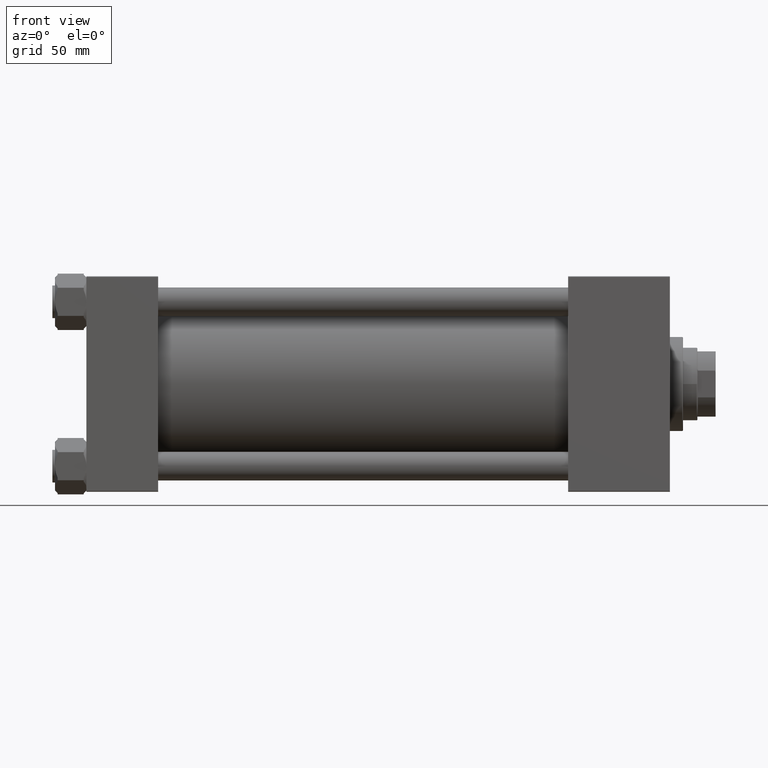
[diagram: clean part render]
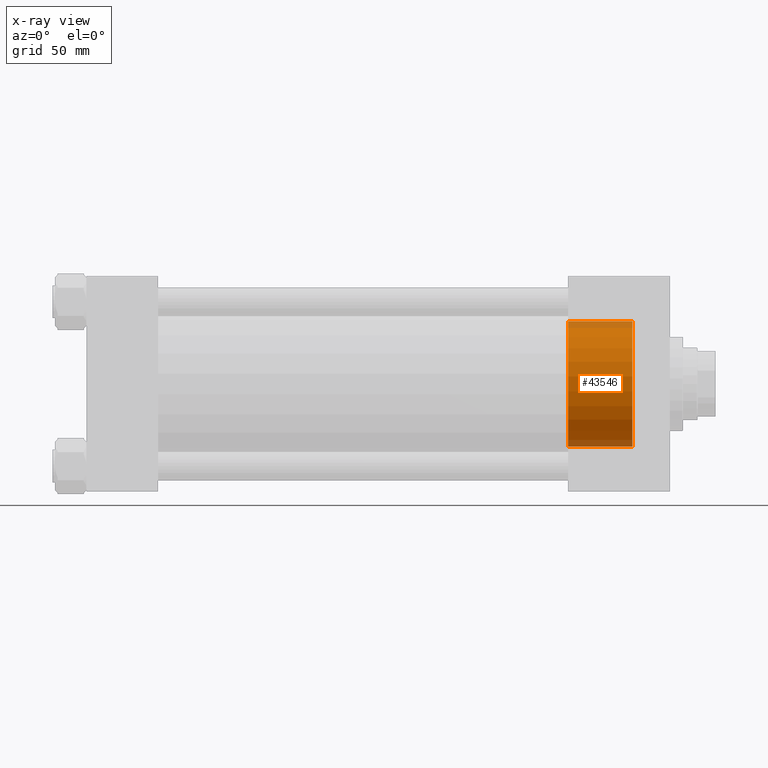
[diagram: x-ray — body ghosted, one internal face saturated and labeled with its STEP entity id]
A machine part, front view, then the same camera in x-ray: the body is ghosted and one INTERNAL B-rep face — a face not visible from any outside direction — is saturated and labeled: STEP entity #43546.
In plain terms, the highlighted cylindrical surface (partial cylindrical patch) has radius 48 mm, axis along (1, 0, 0).
Its self-contained STEP definition (entity closure, byte-faithful):
#195 = VECTOR ( 'NONE', #9526, 1000.000000000000000 ) ;
#750 = LINE ( 'NONE', #17451, #1910 ) ;
#1474 = CARTESIAN_POINT ( 'NONE',  ( 87.73549801218283051, 0.000000000000000000, 0.000000000000000000 ) ) ;
#1910 = VECTOR ( 'NONE', #5122, 1000.000000000000000 ) ;
#2700 = VERTEX_POINT ( 'NONE', #15061 ) ;
#5122 = DIRECTION ( 'NONE',  ( 1.000000000000000000, -0.000000000000000000, -0.000000000000000000 ) ) ;
#5919 = CARTESIAN_POINT ( 'NONE',  ( 87.73549801218283051, 0.000000000000000000, -48.00000000000000711 ) ) ;
#6753 = ORIENTED_EDGE ( 'NONE', *, *, #29137, .T. ) ;
#9526 = DIRECTION ( 'NONE',  ( 1.000000000000000000, -0.000000000000000000, -0.000000000000000000 ) ) ;
#9931 = CYLINDRICAL_SURFACE ( 'NONE', #16511, 48.00000000000000711 ) ;
#11510 = CARTESIAN_POINT ( 'NONE',  ( 369.0000000000000000, 5.878304635907296578E-15, 48.00000000000000711 ) ) ;
#13550 = DIRECTION ( 'NONE',  ( 1.000000000000000000, -0.000000000000000000, -0.000000000000000000 ) ) ;
#13887 = EDGE_CURVE ( 'NONE', #34174, #25882, #750, .T. ) ;
#14030 = VERTEX_POINT ( 'NONE', #14837 ) ;
#14837 = CARTESIAN_POINT ( 'NONE',  ( 369.0000000000000000, 0.000000000000000000, -48.00000000000000711 ) ) ;
#15061 = CARTESIAN_POINT ( 'NONE',  ( 418.3000000000000114, 0.000000000000000000, -48.00000000000000711 ) ) ;
#16511 = AXIS2_PLACEMENT_3D ( 'NONE', #1474, #13550, #17409 ) ;
#17409 = DIRECTION ( 'NONE',  ( 0.000000000000000000, 0.000000000000000000, -1.000000000000000000 ) ) ;
#17451 = CARTESIAN_POINT ( 'NONE',  ( 87.73549801218283051, 5.878304635907296578E-15, 48.00000000000000711 ) ) ;
#19471 = DIRECTION ( 'NONE',  ( 0.000000000000000000, 0.000000000000000000, -1.000000000000000000 ) ) ;
#21212 = CIRCLE ( 'NONE', #28609, 48.00000000000000711 ) ;
#21873 = CIRCLE ( 'NONE', #27638, 48.00000000000000711 ) ;
#22045 = ORIENTED_EDGE ( 'NONE', *, *, #13887, .T. ) ;
#22107 = LINE ( 'NONE', #5919, #195 ) ;
#22842 = DIRECTION ( 'NONE',  ( 1.000000000000000000, 0.000000000000000000, 0.000000000000000000 ) ) ;
#23351 = CARTESIAN_POINT ( 'NONE',  ( 418.3000000000000114, 0.000000000000000000, 0.000000000000000000 ) ) ;
#23765 = DIRECTION ( 'NONE',  ( 0.000000000000000000, 0.000000000000000000, 1.000000000000000000 ) ) ;
#24493 = EDGE_CURVE ( 'NONE', #14030, #34174, #21873, .T. ) ;
#25385 = FACE_OUTER_BOUND ( 'NONE', #40637, .T. ) ;
#25882 = VERTEX_POINT ( 'NONE', #41628 ) ;
#27112 = CARTESIAN_POINT ( 'NONE',  ( 369.0000000000000000, 0.000000000000000000, 0.000000000000000000 ) ) ;
#27638 = AXIS2_PLACEMENT_3D ( 'NONE', #27112, #39210, #23765 ) ;
#28522 = ORIENTED_EDGE ( 'NONE', *, *, #48192, .F. ) ;
#28609 = AXIS2_PLACEMENT_3D ( 'NONE', #23351, #22842, #19471 ) ;
#29050 = ORIENTED_EDGE ( 'NONE', *, *, #24493, .T. ) ;
#29137 = EDGE_CURVE ( 'NONE', #25882, #2700, #21212, .T. ) ;
#34174 = VERTEX_POINT ( 'NONE', #11510 ) ;
#39210 = DIRECTION ( 'NONE',  ( -1.000000000000000000, -0.000000000000000000, 0.000000000000000000 ) ) ;
#40637 = EDGE_LOOP ( 'NONE', ( #29050, #22045, #6753, #28522 ) ) ;
#41628 = CARTESIAN_POINT ( 'NONE',  ( 418.3000000000000114, 5.878304635907296578E-15, 48.00000000000000711 ) ) ;
#43546 = ADVANCED_FACE ( 'NONE', ( #25385 ), #9931, .F. ) ;
#48192 = EDGE_CURVE ( 'NONE', #14030, #2700, #22107, .T. ) ;